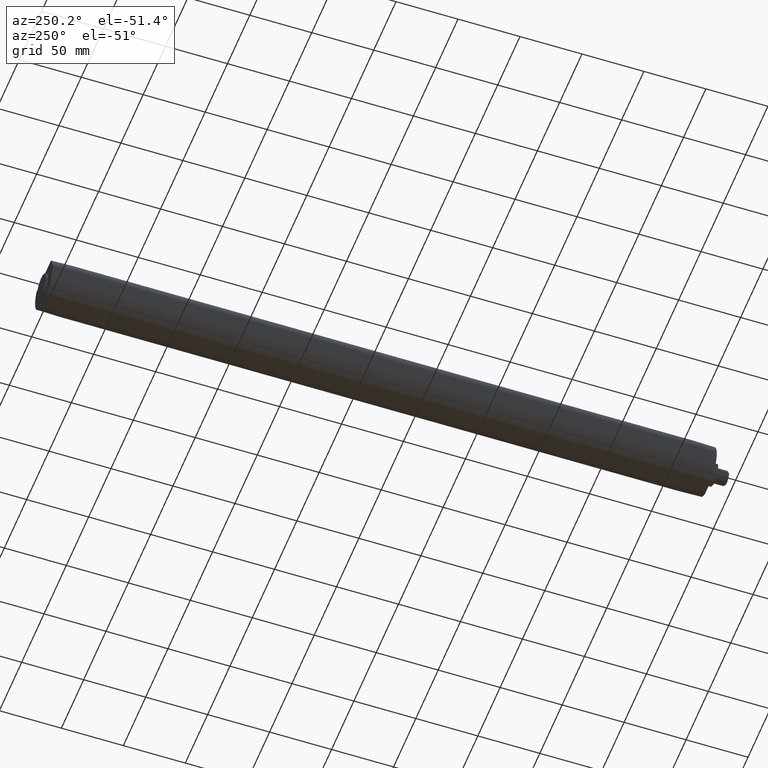
[diagram: clean part render]
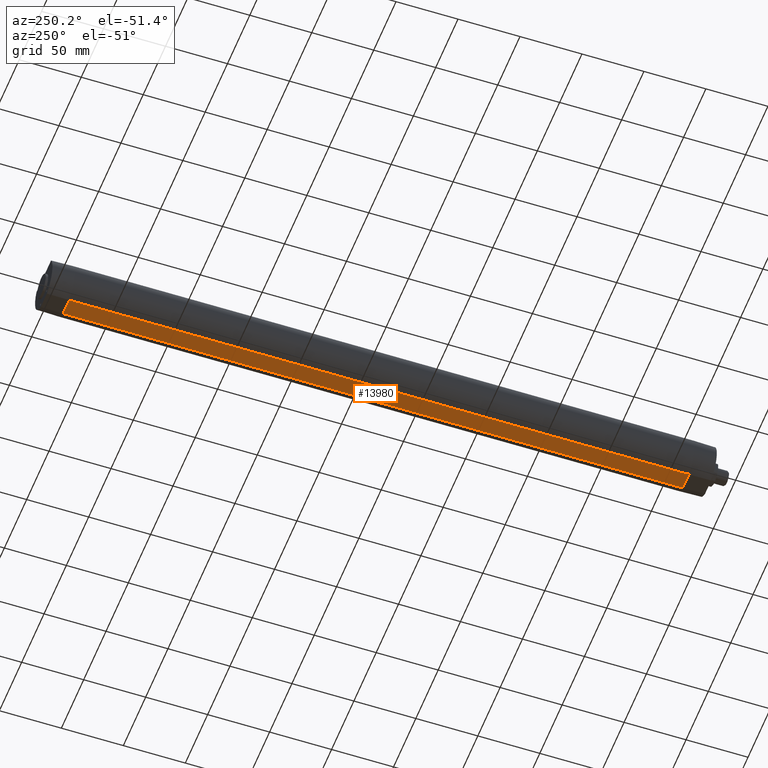
[diagram: same view with one face highlighted and labeled with its STEP entity id]
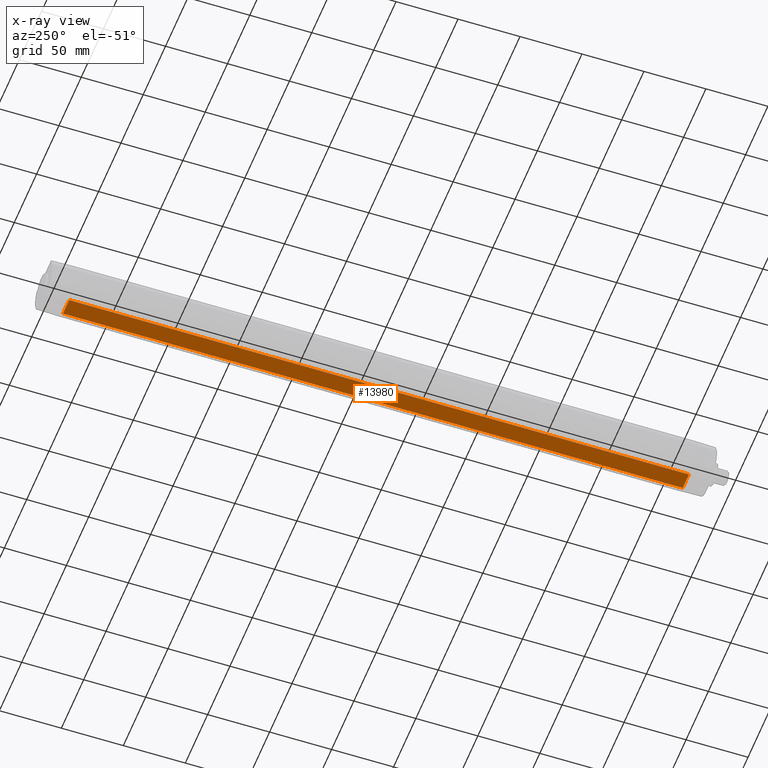
[diagram: x-ray of the same camera — body ghosted, the highlighted face saturated]
A machine part, auxiliary view. The second image highlights one B-rep face of the part: STEP entity #13980.
The next image is the same camera in x-ray: the body ghosted, the highlighted face saturated — about 0% of this face is hidden behind the body in this view.
In plain terms, the highlighted planar face has unit normal (0, -0, -1).
Its self-contained STEP definition (entity closure, byte-faithful):
#13380=CARTESIAN_POINT('',(6.9597054535393,-18.75,-74.9999999999737));
#13390=VERTEX_POINT('',#13380);
#13480=CARTESIAN_POINT('',(-6.95970545353751,-18.75,-75.));
#13490=VERTEX_POINT('',#13480);
#13520=CARTESIAN_POINT('',(0.,-18.75,-75.));
#13530=DIRECTION('',(1.,0.,0.));
#13540=VECTOR('',#13530,1.);
#13550=LINE('',#13520,#13540);
#13560=EDGE_CURVE('',#13490,#13390,#13550,.T.);
#13680=CARTESIAN_POINT('',(7.3076945062144,-18.75,78.75000378));
#13690=DIRECTION('',(-0.,-1.,-0.));
#13700=DIRECTION('',(-1.,0.,0.));
#13710=AXIS2_PLACEMENT_3D('',#13680,#13690,#13700);
#13720=PLANE('',#13710);
#13730=ORIENTED_EDGE('',*,*,#13560,.T.);
#13740=CARTESIAN_POINT('',(-6.95970545353749,-18.75,-75.5000000002358));
#13750=DIRECTION('',(0.,0.,1.));
#13760=VECTOR('',#13750,1.);
#13770=LINE('',#13740,#13760);
#13780=CARTESIAN_POINT('',(-6.95970545353913,-18.75,424.999999999989));
#13790=VERTEX_POINT('',#13780);
#13800=EDGE_CURVE('',#13490,#13790,#13770,.T.);
#13810=ORIENTED_EDGE('',*,*,#13800,.F.);
#13820=CARTESIAN_POINT('',(0.,-18.75,425.));
#13830=DIRECTION('',(-1.,0.,0.));
#13840=VECTOR('',#13830,1.);
#13850=LINE('',#13820,#13840);
#13860=CARTESIAN_POINT('',(6.9597054535371,-18.75,425.000000000013));
#13870=VERTEX_POINT('',#13860);
#13880=EDGE_CURVE('',#13870,#13790,#13850,.T.);
#13890=ORIENTED_EDGE('',*,*,#13880,.T.);
#13900=CARTESIAN_POINT('',(6.95970545353759,-18.75,-75.4999999999999));
#13910=DIRECTION('',(0.,0.,-1.));
#13920=VECTOR('',#13910,1.);
#13930=LINE('',#13900,#13920);
#13940=EDGE_CURVE('',#13870,#13390,#13930,.T.);
#13950=ORIENTED_EDGE('',*,*,#13940,.F.);
#13960=EDGE_LOOP('',(#13950,#13890,#13810,#13730));
#13970=FACE_OUTER_BOUND('',#13960,.T.);
#13980=ADVANCED_FACE('',(#13970),#13720,.T.);